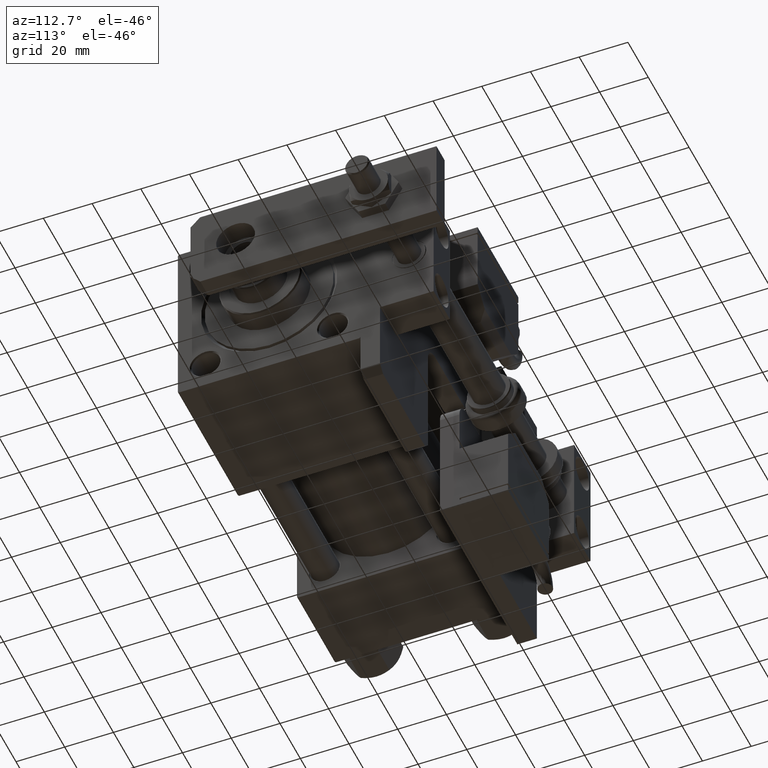
[diagram: clean part render]
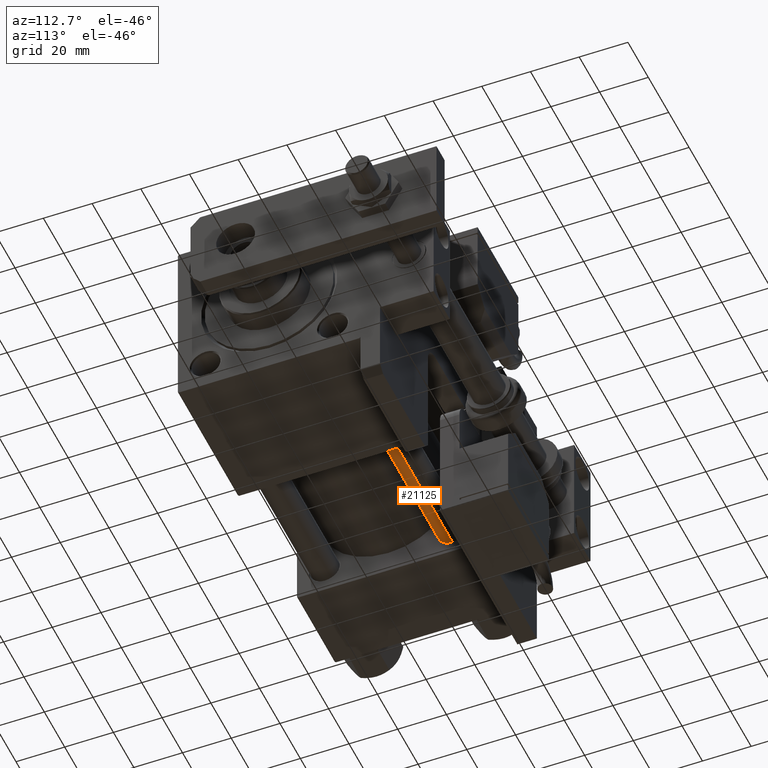
[diagram: same view with one face highlighted and labeled with its STEP entity id]
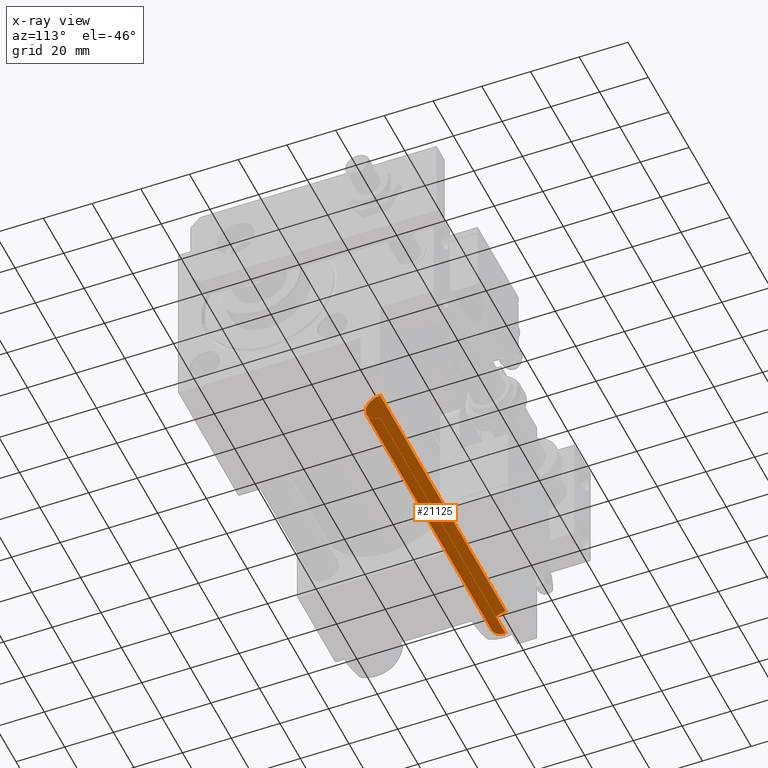
[diagram: x-ray of the same camera — body ghosted, the highlighted face saturated]
A machine part, auxiliary view. The second image highlights one B-rep face of the part: STEP entity #21125.
The next image is the same camera in x-ray: the body ghosted, the highlighted face saturated — about 22% of this face is hidden behind the body in this view.
In plain terms, the highlighted cylindrical surface (edge-blend (fillet) strip) has radius 6 mm, axis along (1, -0, -0).
Its self-contained STEP definition (entity closure, byte-faithful):
#974 = CARTESIAN_POINT ( 'NONE',  ( 0.000000000000000000, 0.000000000000000000, 0.4999999999999865663 ) ) ;
#1239 = VERTEX_POINT ( 'NONE', #14828 ) ;
#1954 = CIRCLE ( 'NONE', #19090, 6.000000000000000888 ) ;
#3582 = CARTESIAN_POINT ( 'NONE',  ( -6.000000000000000888, 0.000000000000000000, 124.0000000000000000 ) ) ;
#4139 = DIRECTION ( 'NONE',  ( -0.000000000000000000, -0.000000000000000000, -1.000000000000000000 ) ) ;
#4228 = ORIENTED_EDGE ( 'NONE', *, *, #8225, .T. ) ;
#4983 = AXIS2_PLACEMENT_3D ( 'NONE', #50439, #7463, #55542 ) ;
#6023 = VECTOR ( 'NONE', #4139, 1000.000000000000000 ) ;
#7463 = DIRECTION ( 'NONE',  ( 0.000000000000000000, 0.000000000000000000, -1.000000000000000000 ) ) ;
#8225 = EDGE_CURVE ( 'NONE', #23948, #12946, #51069, .T. ) ;
#9056 = ORIENTED_EDGE ( 'NONE', *, *, #47295, .F. ) ;
#12946 = VERTEX_POINT ( 'NONE', #39384 ) ;
#14828 = CARTESIAN_POINT ( 'NONE',  ( 6.000000000000000888, 7.347880794884120722E-16, 0.4999999999999865663 ) ) ;
#17620 = CARTESIAN_POINT ( 'NONE',  ( 6.000000000000000888, 7.347880794884120722E-16, 123.5000000000000426 ) ) ;
#17683 = CARTESIAN_POINT ( 'NONE',  ( 0.000000000000000000, 0.000000000000000000, 124.0000000000000000 ) ) ;
#19090 = AXIS2_PLACEMENT_3D ( 'NONE', #974, #52137, #30663 ) ;
#20799 = DIRECTION ( 'NONE',  ( -0.000000000000000000, -0.000000000000000000, -1.000000000000000000 ) ) ;
#21125 = ADVANCED_FACE ( 'NONE', ( #25323 ), #55300, .T. ) ;
#22125 = CIRCLE ( 'NONE', #4983, 6.000000000000000888 ) ;
#23317 = CARTESIAN_POINT ( 'NONE',  ( 6.000000000000000888, 7.347880794884120722E-16, 124.0000000000000000 ) ) ;
#23948 = VERTEX_POINT ( 'NONE', #49540 ) ;
#25323 = FACE_OUTER_BOUND ( 'NONE', #51235, .T. ) ;
#28531 = EDGE_CURVE ( 'NONE', #12946, #1239, #1954, .T. ) ;
#30663 = DIRECTION ( 'NONE',  ( 1.000000000000000000, 0.000000000000000000, 0.000000000000000000 ) ) ;
#32054 = VECTOR ( 'NONE', #36322, 1000.000000000000000 ) ;
#32911 = LINE ( 'NONE', #23317, #32054 ) ;
#36322 = DIRECTION ( 'NONE',  ( -0.000000000000000000, -0.000000000000000000, -1.000000000000000000 ) ) ;
#38053 = DIRECTION ( 'NONE',  ( -1.000000000000000000, 0.000000000000000000, 0.000000000000000000 ) ) ;
#39384 = CARTESIAN_POINT ( 'NONE',  ( -6.000000000000000888, 0.000000000000000000, 0.4999999999999865663 ) ) ;
#40253 = ORIENTED_EDGE ( 'NONE', *, *, #28531, .T. ) ;
#46915 = ORIENTED_EDGE ( 'NONE', *, *, #47350, .T. ) ;
#47295 = EDGE_CURVE ( 'NONE', #54015, #1239, #32911, .T. ) ;
#47350 = EDGE_CURVE ( 'NONE', #54015, #23948, #22125, .T. ) ;
#49540 = CARTESIAN_POINT ( 'NONE',  ( -6.000000000000000888, 0.000000000000000000, 123.5000000000000426 ) ) ;
#49612 = AXIS2_PLACEMENT_3D ( 'NONE', #17683, #20799, #38053 ) ;
#50439 = CARTESIAN_POINT ( 'NONE',  ( 0.000000000000000000, 0.000000000000000000, 123.5000000000000426 ) ) ;
#51069 = LINE ( 'NONE', #3582, #6023 ) ;
#51235 = EDGE_LOOP ( 'NONE', ( #9056, #46915, #4228, #40253 ) ) ;
#52137 = DIRECTION ( 'NONE',  ( -0.000000000000000000, -0.000000000000000000, 1.000000000000000000 ) ) ;
#54015 = VERTEX_POINT ( 'NONE', #17620 ) ;
#55300 = CYLINDRICAL_SURFACE ( 'NONE', #49612, 6.000000000000000888 ) ;
#55542 = DIRECTION ( 'NONE',  ( 1.000000000000000000, 0.000000000000000000, 0.000000000000000000 ) ) ;